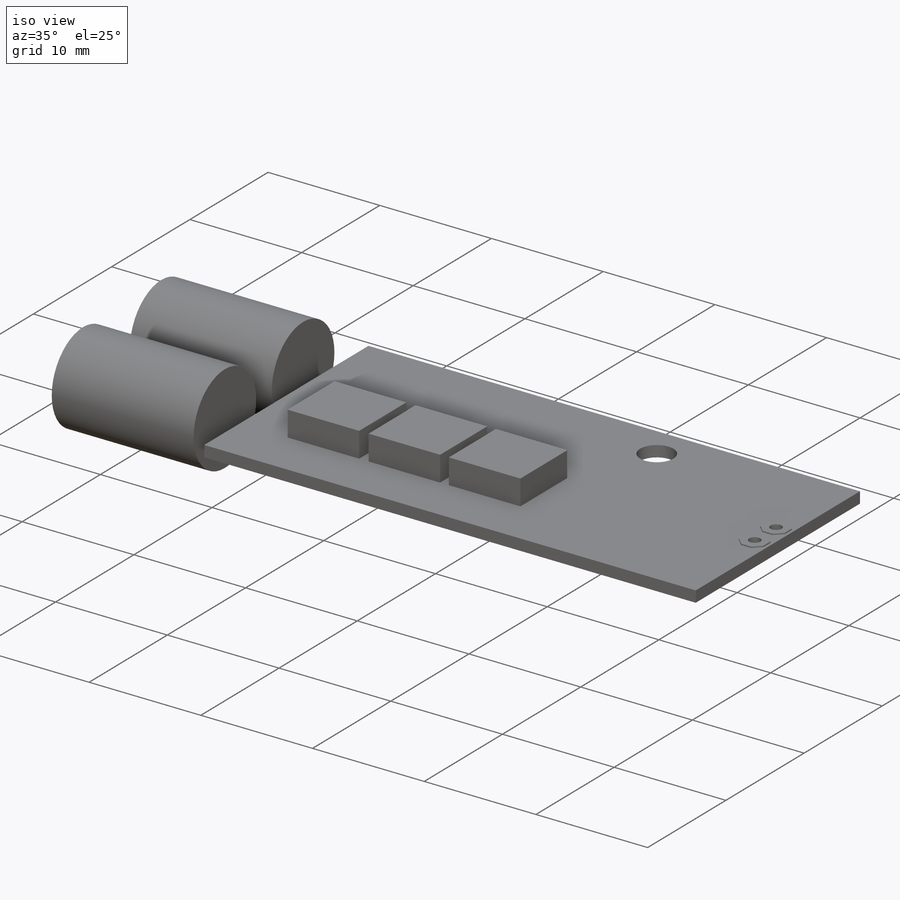
[diagram: iso view]
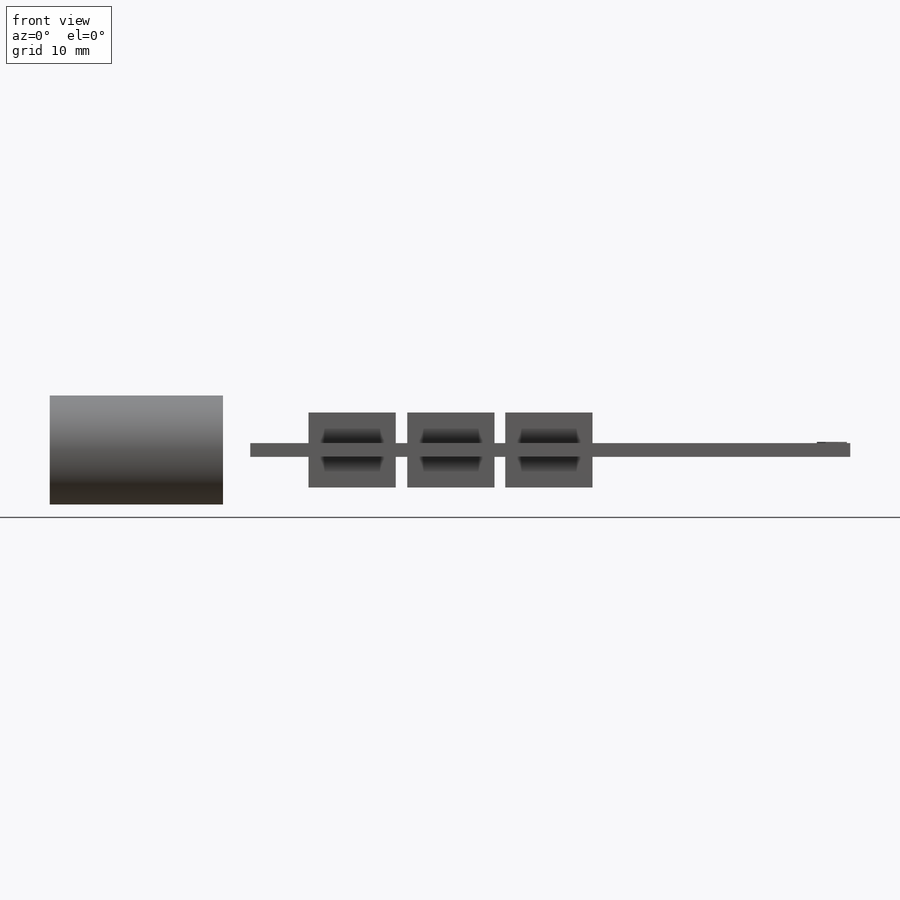
[diagram: front view]
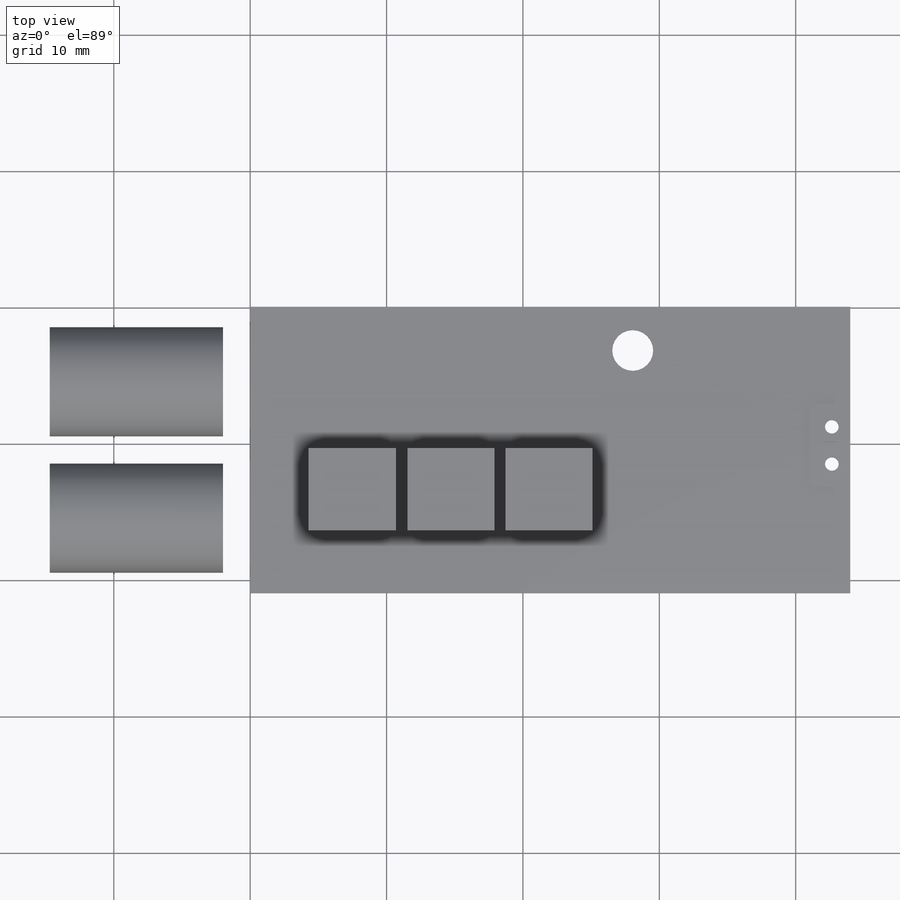
[diagram: top view]
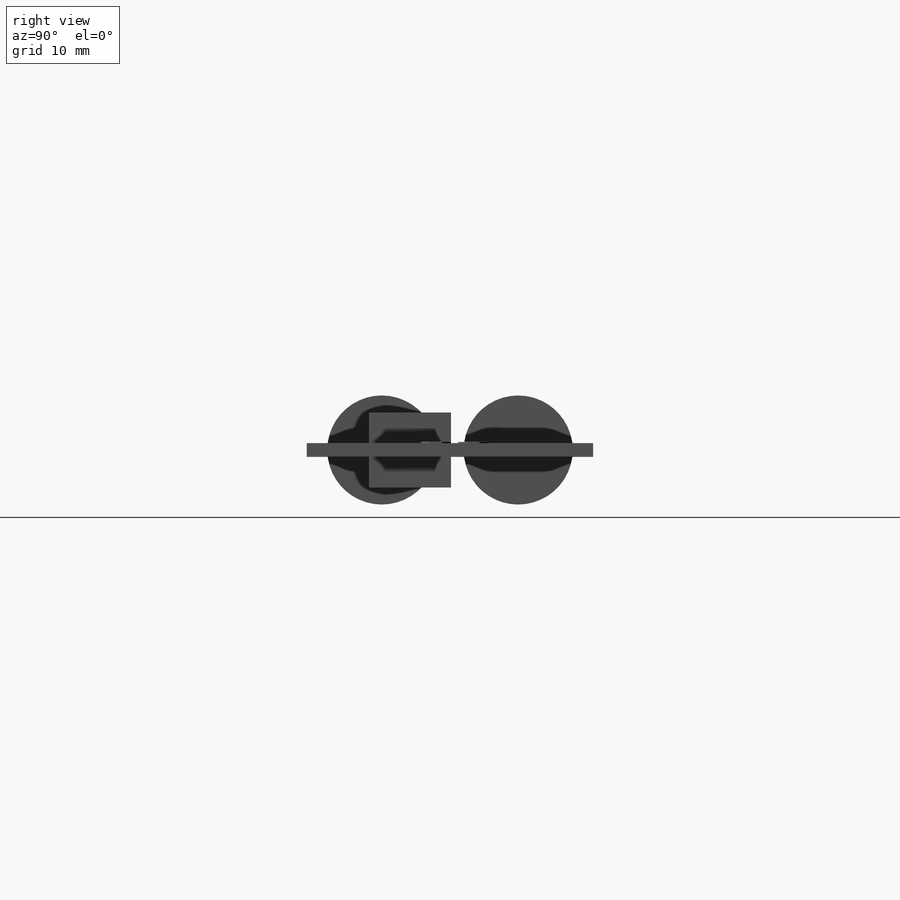
[diagram: right view]
SOLIDWORKS PART (.sldprt)
format: sldprt  version: not decoded by parser v0  size: 239,616 bytes
history: native  units: mm
features: extrude x6, sketch x5, plane x3, material x1, cut_extrude x1 (+8 scaffold rows collapsed)
feature tree (24):
  scaffold x8  (default folders/planes/origin — collapsed)
  material  "Стеклотекстолит СТЕФ-1"
  plane  "Спереди"
  plane  "Сверху"
  plane  "Справа"
  sketch  "Эскиз1"  dims[D1=21.0mm]
  extrude  "Бобышка-Вытянуть1"  Depth=1mm
  sketch  "Эскиз4"  dims[c1.D1=7.7mm c1.D2=2.45mm c1.D3=2.73mm c2.D1=~22.714412deg]
  extrude  "Бобышка-Вытянуть3"  Depth=0.1mm
  sketch  "Эскиз2"  dims[D1=28.05mm D2=3.2mm]
  cut_extrude  "Вырез-Вытянуть1"  Depth=1mm
  sketch  "Эскиз3"
  extrude  "Блок1-2"  [1 undecoded]
  extrude  "Блок1-3"  Depth=20.829mm
  extrude  "Бобышка-Вытянуть2"  Depth=2.25mm
  sketch  "Эскиз5"  dims[D1=10.0mm]
  extrude  "Бобышка-Вытянуть4"  Depth=12.7mm
decode coverage: 10 of 12 modeling features carry decoded parameters
note: ~ marks probable driven/reference dimensions
note: 1 parameter value undecoded
note: suppression state not decoded; provenance and decode notes live in map.json
